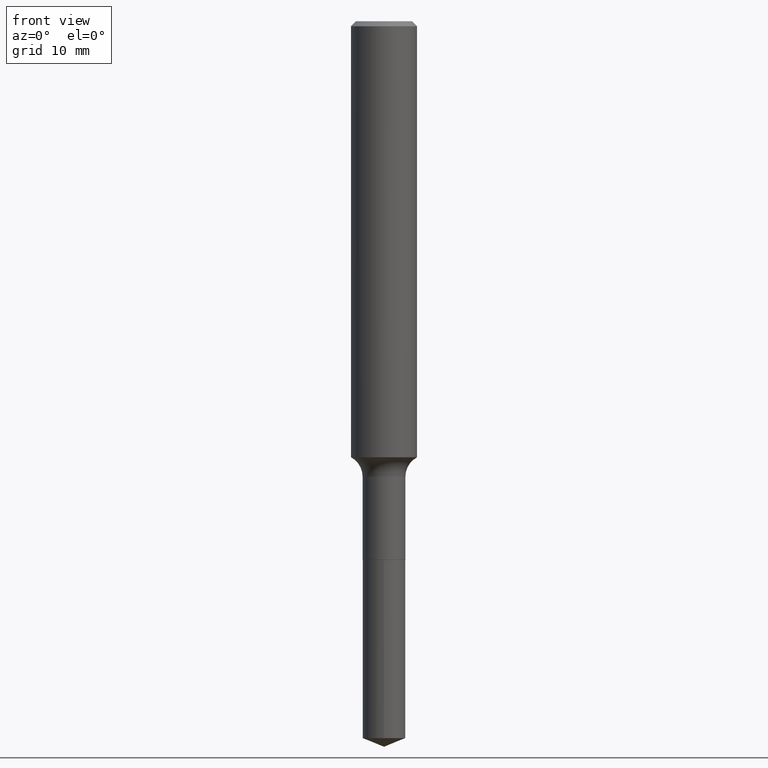
[diagram: clean part render]
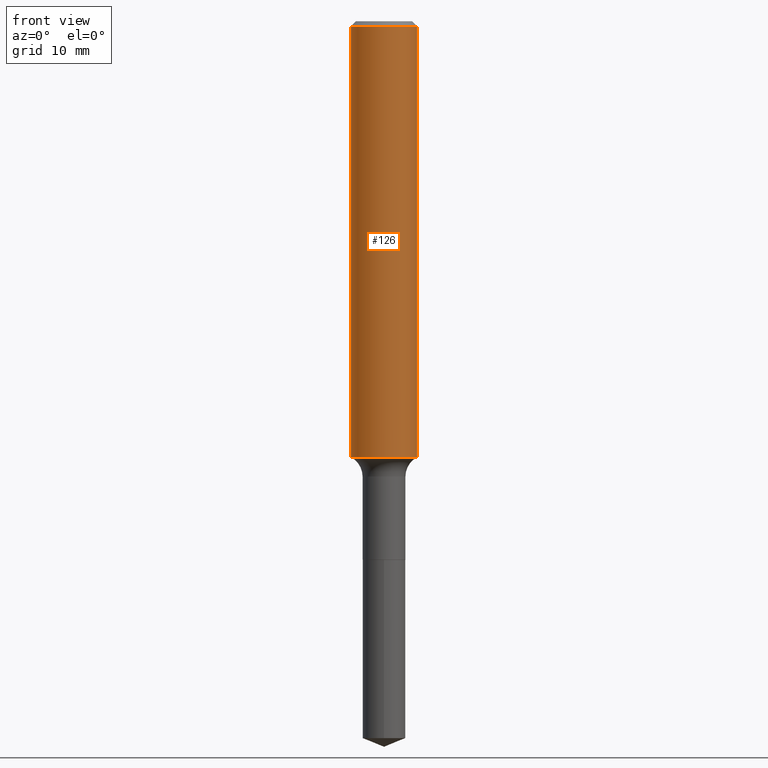
[diagram: same view with one face highlighted and labeled with its STEP entity id]
A machine part, front view. The second image highlights one B-rep face of the part: STEP entity #126.
In plain terms, the highlighted cylindrical surface (edge-blend (fillet) strip) has radius 2.9997 mm, axis along (-0, 0, 1).
Its self-contained STEP definition (entity closure, byte-faithful):
#13 = VERTEX_POINT ( 'NONE', #239 ) ;
#19 = VECTOR ( 'NONE', #229, 39.37007874015748143 ) ;
#30 = CYLINDRICAL_SURFACE ( 'NONE', #322, 0.1181000000000001077 ) ;
#72 = CARTESIAN_POINT ( 'NONE',  ( 0.1181000000000001077, -8.246878922347488542E-16, 5.758764772215005345E-30 ) ) ;
#91 = AXIS2_PLACEMENT_3D ( 'NONE', #410, #369, #374 ) ;
#102 = DIRECTION ( 'NONE',  ( 1.000000000000000000, -6.982962677686268288E-15, 0.000000000000000000 ) ) ;
#110 = CARTESIAN_POINT ( 'NONE',  ( 0.1181000000000001909, -6.277148188467687568E-15, -1.561646695794609796 ) ) ;
#126 = ADVANCED_FACE ( 'NONE', ( #296 ), #30, .T. ) ;
#149 = LINE ( 'NONE', #344, #19 ) ;
#210 = DIRECTION ( 'NONE',  ( 1.000000000000000000, -6.982962677686266711E-15, 4.876176775795935793E-29 ) ) ;
#214 = CARTESIAN_POINT ( 'NONE',  ( 0.000000000000000000, 0.000000000000000000, 0.000000000000000000 ) ) ;
#215 = ORIENTED_EDGE ( 'NONE', *, *, #221, .T. ) ;
#221 = EDGE_CURVE ( 'NONE', #13, #327, #438, .T. ) ;
#225 = DIRECTION ( 'NONE',  ( -2.445468806185136877E-29, 3.491481338843145188E-15, 1.000000000000000000 ) ) ;
#229 = DIRECTION ( 'NONE',  ( -2.445468806185136877E-29, 3.491481338843145188E-15, 1.000000000000000000 ) ) ;
#239 = CARTESIAN_POINT ( 'NONE',  ( -0.1181000000000001909, -4.613309325300259530E-15, -1.561646695794609796 ) ) ;
#253 = CIRCLE ( 'NONE', #91, 0.1180999999999999966 ) ;
#279 = EDGE_CURVE ( 'NONE', #311, #400, #253, .T. ) ;
#296 = FACE_OUTER_BOUND ( 'NONE', #489, .T. ) ;
#311 = VERTEX_POINT ( 'NONE', #444 ) ;
#322 = AXIS2_PLACEMENT_3D ( 'NONE', #214, #364, #210 ) ;
#327 = VERTEX_POINT ( 'NONE', #110 ) ;
#334 = EDGE_CURVE ( 'NONE', #13, #311, #149, .T. ) ;
#344 = CARTESIAN_POINT ( 'NONE',  ( -0.1181000000000001077, 8.391509709326790846E-16, -5.809262341591049389E-30 ) ) ;
#346 = CARTESIAN_POINT ( 'NONE',  ( 0.1180999999999999966, -8.865394841523547570E-16, -0.01771500000000010566 ) ) ;
#364 = DIRECTION ( 'NONE',  ( -2.445468806185136597E-29, 3.491481338843145583E-15, 1.000000000000000000 ) ) ;
#369 = DIRECTION ( 'NONE',  ( -2.445468806185136597E-29, 3.491481338843145583E-15, 1.000000000000000000 ) ) ;
#374 = DIRECTION ( 'NONE',  ( 1.000000000000000000, -6.982962677686266711E-15, 0.000000000000000000 ) ) ;
#392 = AXIS2_PLACEMENT_3D ( 'NONE', #440, #437, #102 ) ;
#398 = ORIENTED_EDGE ( 'NONE', *, *, #334, .F. ) ;
#400 = VERTEX_POINT ( 'NONE', #346 ) ;
#410 = CARTESIAN_POINT ( 'NONE',  ( 4.332147990156995868E-31, -6.185159191760669162E-17, -0.01771500000000010566 ) ) ;
#437 = DIRECTION ( 'NONE',  ( -2.445468806185136597E-29, 3.491481338843145583E-15, 1.000000000000000000 ) ) ;
#438 = CIRCLE ( 'NONE', #392, 0.1181000000000002048 ) ;
#440 = CARTESIAN_POINT ( 'NONE',  ( 3.818958280847807786E-29, -5.452460296232937727E-15, -1.561646695794609796 ) ) ;
#444 = CARTESIAN_POINT ( 'NONE',  ( -0.1180999999999999966, -1.918004973142592583E-15, -0.01771500000000010566 ) ) ;
#446 = LINE ( 'NONE', #72, #476 ) ;
#450 = EDGE_CURVE ( 'NONE', #327, #400, #446, .T. ) ;
#476 = VECTOR ( 'NONE', #225, 39.37007874015748143 ) ;
#478 = ORIENTED_EDGE ( 'NONE', *, *, #279, .F. ) ;
#484 = ORIENTED_EDGE ( 'NONE', *, *, #450, .T. ) ;
#489 = EDGE_LOOP ( 'NONE', ( #398, #215, #484, #478 ) ) ;